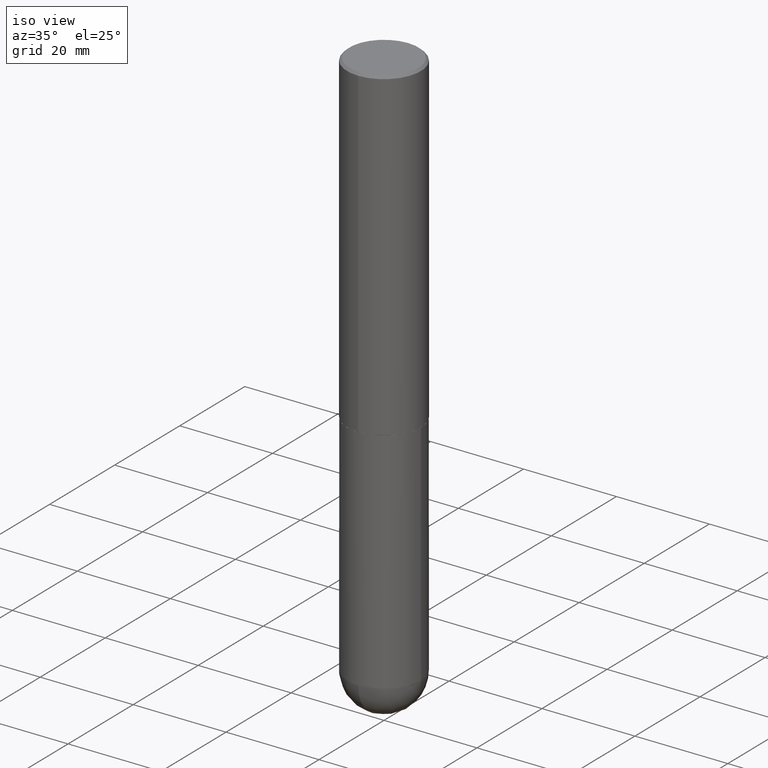
[diagram: clean part render]
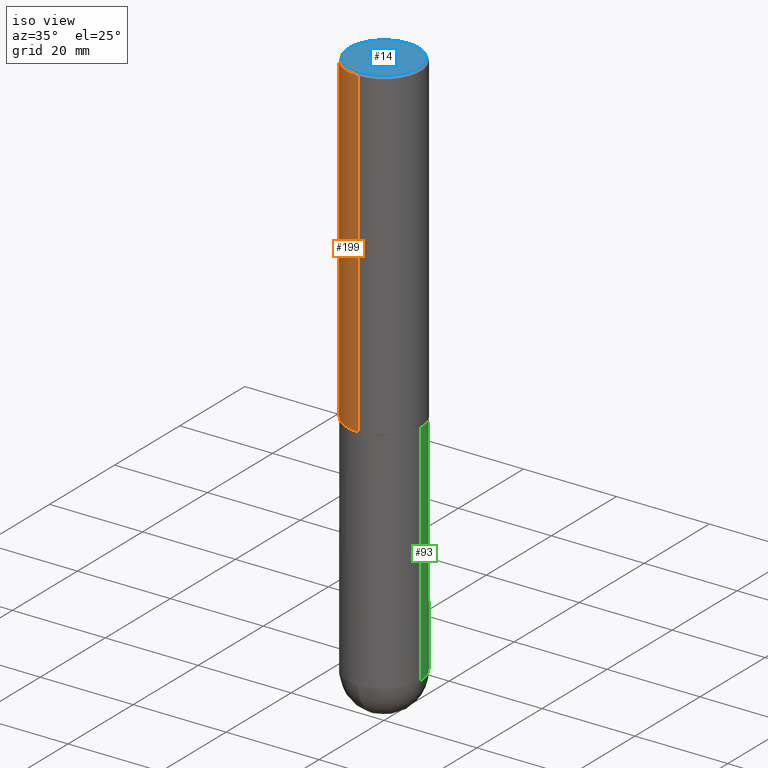
[diagram: same view with three faces highlighted in distinct colors, each labeled with its STEP entity id]
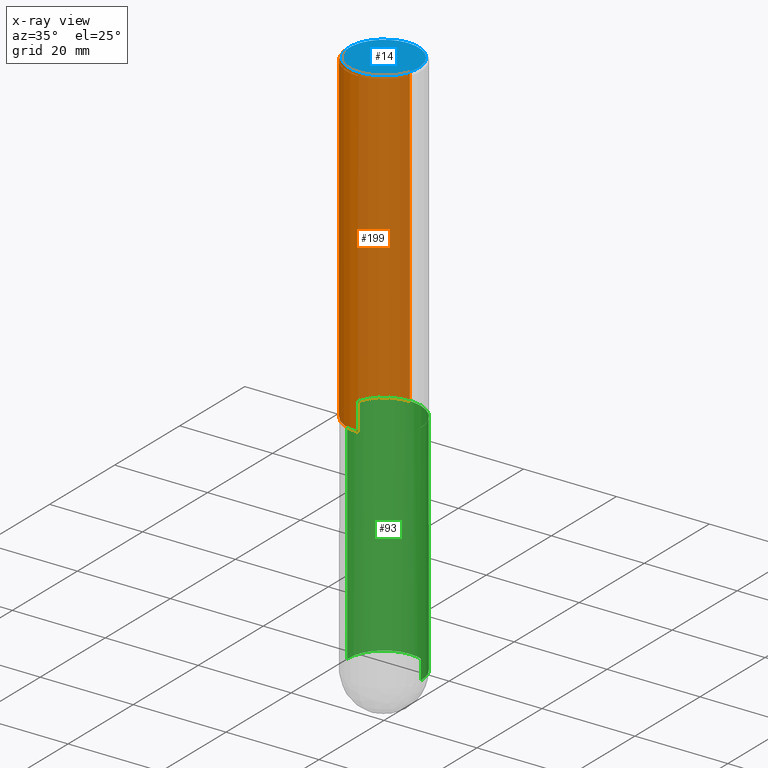
[diagram: x-ray of the same camera — body ghosted, the three highlighted faces saturated]
A machine part, iso view with three faces highlighted in distinct colors.
The next image is the same camera in x-ray (body ghosted, the three faces saturated) — at least one of them is partly hidden behind the body in this view.
Their STEP definitions:

[orange] entity #199 — the highlighted cylindrical surface (partial cylindrical patch) has radius 7.9375 mm, axis along (-0, 0, 1).
#4 = CIRCLE ( 'NONE', #347, 0.3125000000000000000 ) ;
#7 = VERTEX_POINT ( 'NONE', #350 ) ;
#16 = FACE_OUTER_BOUND ( 'NONE', #373, .T. ) ;
#18 = DIRECTION ( 'NONE',  ( -6.982962677686265922E-15, -1.000000000000000000, 3.492065272098710428E-15 ) ) ;
#61 = CARTESIAN_POINT ( 'NONE',  ( 2.182175836776958741E-15, 0.3124999999999999445, -0.02000000000000116268 ) ) ;
#73 = CYLINDRICAL_SURFACE ( 'NONE', #146, 0.3125000000000002776 ) ;
#98 = CARTESIAN_POINT ( 'NONE',  ( 0.000000000000000000, 0.000000000000000000, 0.000000000000000000 ) ) ;
#121 = VECTOR ( 'NONE', #337, 39.37007874015748143 ) ;
#128 = VECTOR ( 'NONE', #130, 39.37007874015748143 ) ;
#130 = DIRECTION ( 'NONE',  ( -2.445061047772150115E-29, 3.492065272098710033E-15, 1.000000000000000000 ) ) ;
#146 = AXIS2_PLACEMENT_3D ( 'NONE', #98, #168, #18 ) ;
#158 = EDGE_CURVE ( 'NONE', #248, #316, #387, .T. ) ;
#163 = EDGE_CURVE ( 'NONE', #248, #7, #339, .T. ) ;
#168 = DIRECTION ( 'NONE',  ( -2.445061047772150115E-29, 3.492065272098710033E-15, 1.000000000000000000 ) ) ;
#174 = ORIENTED_EDGE ( 'NONE', *, *, #400, .F. ) ;
#199 = ADVANCED_FACE ( 'NONE', ( #16 ), #73, .T. ) ;
#201 = DIRECTION ( 'NONE',  ( -6.982962677686265922E-15, -1.000000000000000000, 3.496765431890251398E-15 ) ) ;
#227 = CARTESIAN_POINT ( 'NONE',  ( -2.182175836776959925E-15, -0.3125000000000002776, 1.091270397530848019E-15 ) ) ;
#248 = VERTEX_POINT ( 'NONE', #398 ) ;
#250 = AXIS2_PLACEMENT_3D ( 'NONE', #267, #357, #201 ) ;
#260 = ORIENTED_EDGE ( 'NONE', *, *, #158, .F. ) ;
#263 = LINE ( 'NONE', #227, #121 ) ;
#267 = CARTESIAN_POINT ( 'NONE',  ( 6.721472820325638787E-29, -9.599687432999352568E-15, -2.748999999999999666 ) ) ;
#276 = CARTESIAN_POINT ( 'NONE',  ( 4.890122095544317046E-31, -6.984130544197443732E-17, -0.02000000000000006981 ) ) ;
#288 = CARTESIAN_POINT ( 'NONE',  ( -2.143905624303602824E-15, -0.3125000000000000555, -0.01999999999999897693 ) ) ;
#295 = CARTESIAN_POINT ( 'NONE',  ( 2.220446049250314659E-15, 0.3125000000000002776, -1.091270397530848019E-15 ) ) ;
#311 = ORIENTED_EDGE ( 'NONE', *, *, #163, .T. ) ;
#316 = VERTEX_POINT ( 'NONE', #61 ) ;
#337 = DIRECTION ( 'NONE',  ( -2.445061047772150115E-29, 3.492065272098710033E-15, 1.000000000000000000 ) ) ;
#339 = CIRCLE ( 'NONE', #250, 0.3125000000000004996 ) ;
#340 = DIRECTION ( 'NONE',  ( -6.982962677686265133E-15, -1.000000000000000000, 3.496765431890256920E-15 ) ) ;
#345 = ORIENTED_EDGE ( 'NONE', *, *, #397, .T. ) ;
#347 = AXIS2_PLACEMENT_3D ( 'NONE', #276, #375, #340 ) ;
#350 = CARTESIAN_POINT ( 'NONE',  ( -2.182175836776894449E-15, -0.3125000000000101030, -2.748999999999998334 ) ) ;
#357 = DIRECTION ( 'NONE',  ( -2.445061047772150115E-29, 3.492065272098710033E-15, 1.000000000000000000 ) ) ;
#368 = VERTEX_POINT ( 'NONE', #288 ) ;
#373 = EDGE_LOOP ( 'NONE', ( #260, #311, #345, #174 ) ) ;
#375 = DIRECTION ( 'NONE',  ( -2.445061047772150115E-29, 3.492065272098710033E-15, 1.000000000000000000 ) ) ;
#387 = LINE ( 'NONE', #295, #128 ) ;
#397 = EDGE_CURVE ( 'NONE', #7, #368, #263, .T. ) ;
#398 = CARTESIAN_POINT ( 'NONE',  ( 2.220446049250349763E-15, 0.3124999999999908407, -2.749000000000000554 ) ) ;
#400 = EDGE_CURVE ( 'NONE', #316, #368, #4, .T. ) ;

[blue] entity #14 — the highlighted planar face has unit normal (0, -0, -1).
#10 = CARTESIAN_POINT ( 'NONE',  ( 4.066165536435923517E-45, -5.807345985626986545E-31, -1.663011866366634946E-16 ) ) ;
#14 = ADVANCED_FACE ( 'NONE', ( #258 ), #315, .F. ) ;
#28 = DIRECTION ( 'NONE',  ( 6.982962677686265922E-15, 1.000000000000000000, -3.492065272098710033E-15 ) ) ;
#39 = CIRCLE ( 'NONE', #314, 0.2925000000000001488 ) ;
#49 = EDGE_CURVE ( 'NONE', #224, #58, #211, .T. ) ;
#56 = CARTESIAN_POINT ( 'NONE',  ( 2.112346210000096232E-15, 0.2925000000000001488, -1.187730278725536658E-15 ) ) ;
#58 = VERTEX_POINT ( 'NONE', #56 ) ;
#60 = CARTESIAN_POINT ( 'NONE',  ( 4.066165536435923517E-45, -5.807345985626986545E-31, -1.663011866366634946E-16 ) ) ;
#114 = CARTESIAN_POINT ( 'NONE',  ( 2.042516583223233723E-15, 0.2925000000000001488, -1.104579685407205021E-15 ) ) ;
#127 = DIRECTION ( 'NONE',  ( -2.445061047772150115E-29, 3.492065272098710033E-15, 1.000000000000000000 ) ) ;
#133 = AXIS2_PLACEMENT_3D ( 'NONE', #60, #143, #246 ) ;
#135 = EDGE_CURVE ( 'NONE', #58, #224, #39, .T. ) ;
#143 = DIRECTION ( 'NONE',  ( -2.445061047772150115E-29, 3.492065272098710033E-15, 1.000000000000000000 ) ) ;
#211 = CIRCLE ( 'NONE', #133, 0.2925000000000001488 ) ;
#217 = ORIENTED_EDGE ( 'NONE', *, *, #49, .T. ) ;
#220 = DIRECTION ( 'NONE',  ( 2.445061047772149554E-29, -3.492065272098710033E-15, -1.000000000000000000 ) ) ;
#224 = VERTEX_POINT ( 'NONE', #302 ) ;
#231 = DIRECTION ( 'NONE',  ( -6.982962677686265922E-15, -1.000000000000000000, 3.492065272098710033E-15 ) ) ;
#246 = DIRECTION ( 'NONE',  ( -6.982962677686265922E-15, -1.000000000000000000, 3.492065272098710033E-15 ) ) ;
#258 = FACE_OUTER_BOUND ( 'NONE', #292, .T. ) ;
#292 = EDGE_LOOP ( 'NONE', ( #319, #217 ) ) ;
#302 = CARTESIAN_POINT ( 'NONE',  ( -2.075300644325888282E-15, -0.2925000000000001488, 8.551279054522098163E-16 ) ) ;
#314 = AXIS2_PLACEMENT_3D ( 'NONE', #10, #127, #231 ) ;
#315 = PLANE ( 'NONE',  #390 ) ;
#319 = ORIENTED_EDGE ( 'NONE', *, *, #135, .T. ) ;
#390 = AXIS2_PLACEMENT_3D ( 'NONE', #114, #220, #28 ) ;

[green] entity #93 — the highlighted cylindrical surface (partial cylindrical patch) has radius 7.9375 mm, axis along (-0, 0, 1).
#13 = EDGE_CURVE ( 'NONE', #185, #41, #212, .T. ) ;
#19 = AXIS2_PLACEMENT_3D ( 'NONE', #251, #277, #366 ) ;
#26 = CARTESIAN_POINT ( 'NONE',  ( -0.3125000000000000000, -1.076350017957263365E-14, -2.750000000000000000 ) ) ;
#29 = CARTESIAN_POINT ( 'NONE',  ( 0.3125000000000000000, -2.182175836776958347E-15, 1.523805242436230075E-29 ) ) ;
#41 = VERTEX_POINT ( 'NONE', #147 ) ;
#42 = CIRCLE ( 'NONE', #155, 0.3125000000000000000 ) ;
#51 = DIRECTION ( 'NONE',  ( -2.445468806185136597E-29, 3.491481338843145583E-15, 1.000000000000000000 ) ) ;
#55 = VERTEX_POINT ( 'NONE', #26 ) ;
#70 = CARTESIAN_POINT ( 'NONE',  ( 0.3125000000000000000, -1.516612206559990666E-14, -4.687500000000000000 ) ) ;
#76 = CARTESIAN_POINT ( 'NONE',  ( -0.3125000000000000000, -1.076350017957263681E-14, -4.687500000000000000 ) ) ;
#77 = EDGE_CURVE ( 'NONE', #115, #55, #187, .T. ) ;
#82 = FACE_OUTER_BOUND ( 'NONE', #289, .T. ) ;
#83 = VERTEX_POINT ( 'NONE', #282 ) ;
#93 = ADVANCED_FACE ( 'NONE', ( #82 ), #406, .T. ) ;
#110 = CARTESIAN_POINT ( 'NONE',  ( 6.725039217009124520E-29, -9.601573681818649859E-15, -2.750000000000000000 ) ) ;
#115 = VERTEX_POINT ( 'NONE', #76 ) ;
#117 = EDGE_CURVE ( 'NONE', #41, #55, #360, .T. ) ;
#129 = AXIS2_PLACEMENT_3D ( 'NONE', #332, #51, #261 ) ;
#141 = DIRECTION ( 'NONE',  ( -2.445468806185136877E-29, 3.491481338843145188E-15, 1.000000000000000000 ) ) ;
#147 = CARTESIAN_POINT ( 'NONE',  ( 0.3125000000000000000, -1.178374951859560978E-14, -2.750000000000000000 ) ) ;
#153 = VECTOR ( 'NONE', #412, 39.37007874015748143 ) ;
#155 = AXIS2_PLACEMENT_3D ( 'NONE', #290, #281, #327 ) ;
#160 = ORIENTED_EDGE ( 'NONE', *, *, #13, .F. ) ;
#185 = VERTEX_POINT ( 'NONE', #70 ) ;
#187 = LINE ( 'NONE', #317, #324 ) ;
#212 = LINE ( 'NONE', #29, #153 ) ;
#218 = DIRECTION ( 'NONE',  ( 1.000000000000000000, -6.982962677686269077E-15, 0.000000000000000000 ) ) ;
#219 = ORIENTED_EDGE ( 'NONE', *, *, #253, .T. ) ;
#251 = CARTESIAN_POINT ( 'NONE',  ( 0.000000000000000000, 0.000000000000000000, 0.000000000000000000 ) ) ;
#253 = EDGE_CURVE ( 'NONE', #185, #83, #259, .T. ) ;
#255 = ORIENTED_EDGE ( 'NONE', *, *, #77, .T. ) ;
#259 = CIRCLE ( 'NONE', #129, 0.3125000000000000000 ) ;
#261 = DIRECTION ( 'NONE',  ( 1.000000000000000000, -6.982962677686269077E-15, 0.000000000000000000 ) ) ;
#277 = DIRECTION ( 'NONE',  ( -2.445468806185136597E-29, 3.491481338843145583E-15, 1.000000000000000000 ) ) ;
#279 = ORIENTED_EDGE ( 'NONE', *, *, #280, .T. ) ;
#280 = EDGE_CURVE ( 'NONE', #83, #115, #42, .T. ) ;
#281 = DIRECTION ( 'NONE',  ( -2.445468806185136597E-29, 3.491481338843145583E-15, 1.000000000000000000 ) ) ;
#282 = CARTESIAN_POINT ( 'NONE',  ( 2.182175836777072337E-15, 0.3124999999999835132, -4.687500000000000888 ) ) ;
#284 = AXIS2_PLACEMENT_3D ( 'NONE', #110, #370, #218 ) ;
#287 = ORIENTED_EDGE ( 'NONE', *, *, #117, .F. ) ;
#289 = EDGE_LOOP ( 'NONE', ( #279, #255, #287, #160, #219 ) ) ;
#290 = CARTESIAN_POINT ( 'NONE',  ( 1.146313502899282780E-28, -1.636631877582724203E-14, -4.687500000000000000 ) ) ;
#317 = CARTESIAN_POINT ( 'NONE',  ( -0.3125000000000000000, 2.220446049250313081E-15, -1.537167215704658232E-29 ) ) ;
#324 = VECTOR ( 'NONE', #141, 39.37007874015748143 ) ;
#327 = DIRECTION ( 'NONE',  ( 1.000000000000000000, -6.982962677686269077E-15, 0.000000000000000000 ) ) ;
#332 = CARTESIAN_POINT ( 'NONE',  ( 1.146313502899282780E-28, -1.636631877582724203E-14, -4.687500000000000000 ) ) ;
#360 = CIRCLE ( 'NONE', #284, 0.3125000000000000000 ) ;
#366 = DIRECTION ( 'NONE',  ( 1.000000000000000000, -6.982962677686266711E-15, 4.876176775795936353E-29 ) ) ;
#370 = DIRECTION ( 'NONE',  ( -2.445468806185136597E-29, 3.491481338843145583E-15, 1.000000000000000000 ) ) ;
#406 = CYLINDRICAL_SURFACE ( 'NONE', #19, 0.3125000000000000000 ) ;
#412 = DIRECTION ( 'NONE',  ( -2.445468806185136877E-29, 3.491481338843145188E-15, 1.000000000000000000 ) ) ;